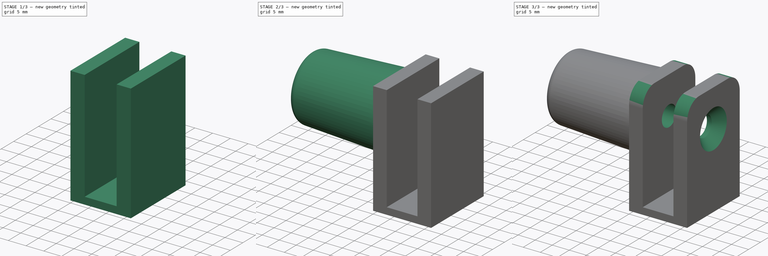
[diagram: build sequence overview — one tinted view per stage of 3, left to right]
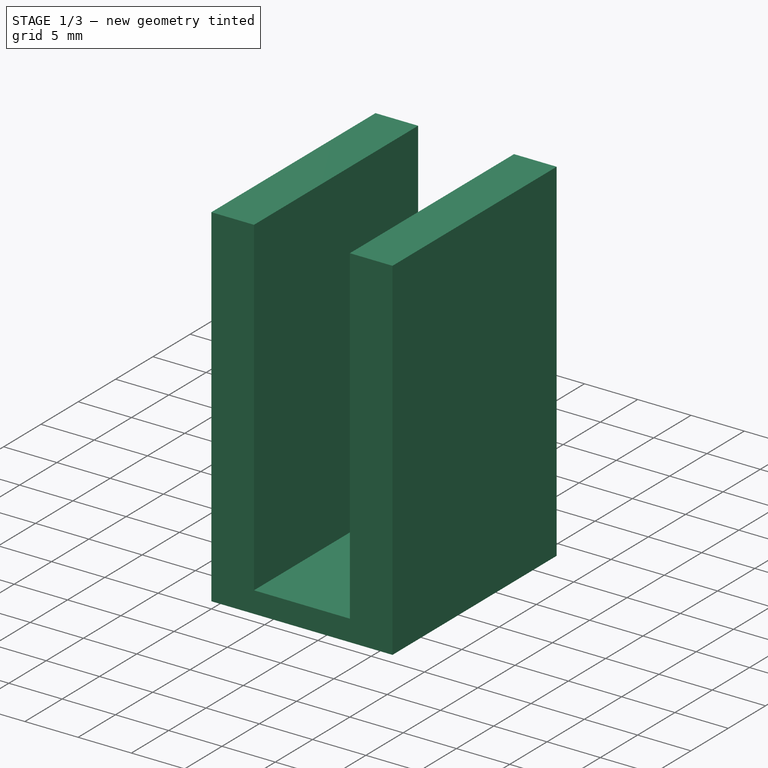
[diagram: stage 1 of 3 — iso view after this stage's code; geometry added in this stage tinted green]
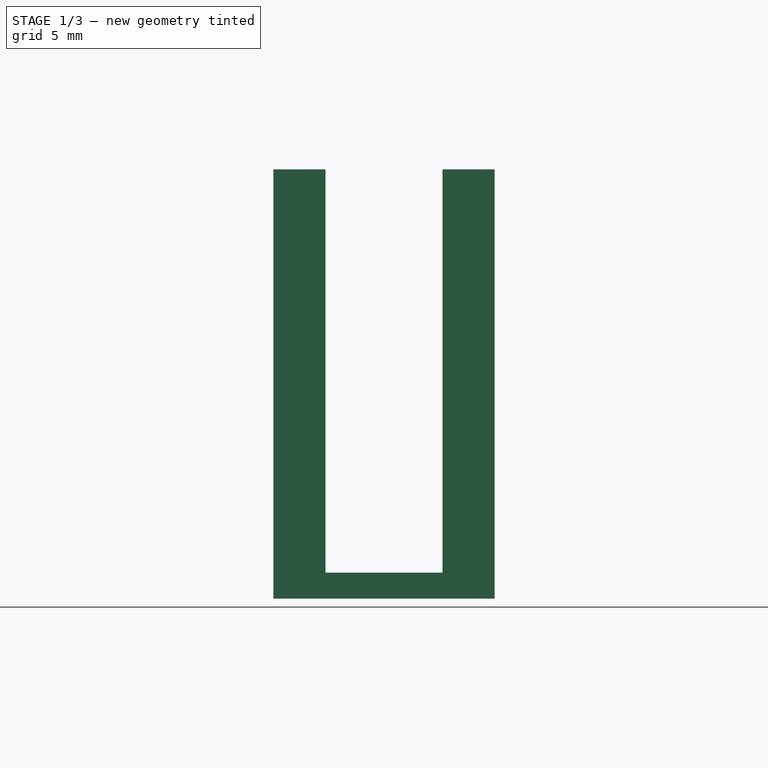
[diagram: stage 1 of 3 — front view after this stage's code; geometry added in this stage tinted green]
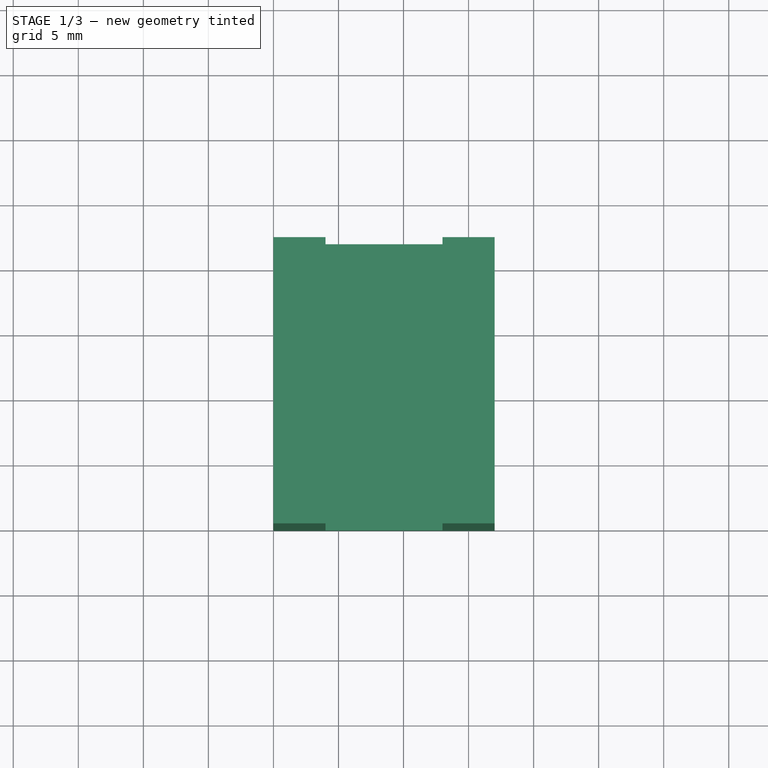
[diagram: stage 1 of 3 — top view after this stage's code; geometry added in this stage tinted green]
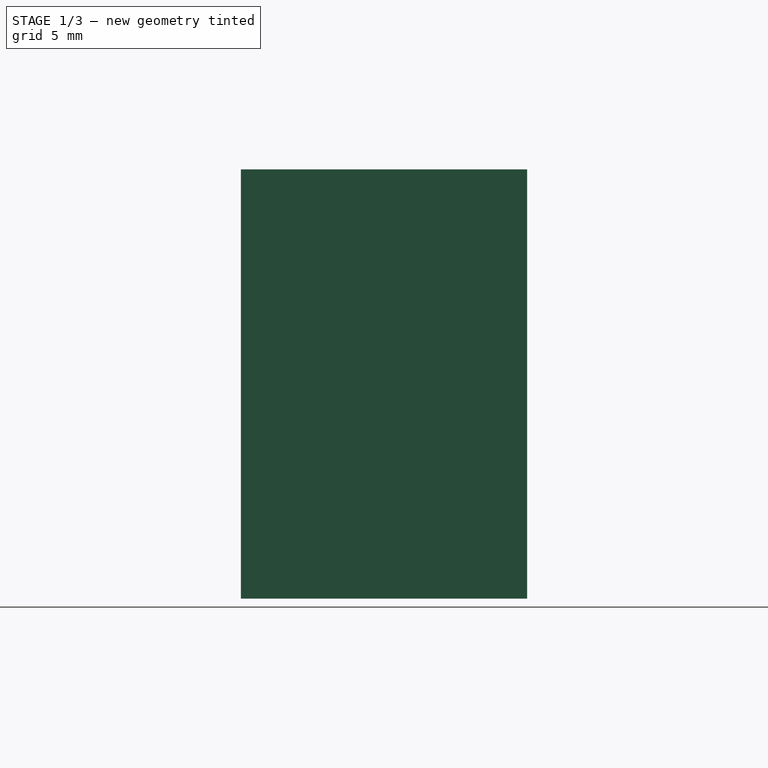
[diagram: stage 1 of 3 — right view after this stage's code; geometry added in this stage tinted green]
FCSTD DOCUMENT  (FreeCAD 0.18R16155 (Git))
Label: shutter_stop_holder
License: All rights reserved
LicenseURL: http://en.wikipedia.org/wiki/All_rights_reserved
objects: Sketcher::SketchObject×5, PartDesign::Pad×2, PartDesign::Fillet×2, PartDesign::AdditiveLoft×1, PartDesign::Hole×1, PartDesign::Body×1, App::Part×1
note: 16 computed .brp shape members not serialized (recipe doc carries the construction recipe); baked Part::Feature solids carry a one-line shape summary decoded from their .brp

FEATURE [Sketcher::SketchObject] Sketch
  MapMode = 5
  Support = -> [XY_Plane001]
  sketch-geometry (4):
    g0: LineSegment StartX=0 StartY=0 StartZ=0 EndX=17 EndY=0 EndZ=0
    g1: LineSegment StartX=17 StartY=0 StartZ=0 EndX=17 EndY=22 EndZ=0
    g2: LineSegment StartX=17 StartY=22 StartZ=0 EndX=0 EndY=22 EndZ=0
    g3: LineSegment StartX=0 StartY=22 StartZ=0 EndX=0 EndY=0 EndZ=0
  constraints (11):
    c: Coincident(g0,g1)
    c: Coincident(g1,g2)
    c: Coincident(g2,g3)
    c: Coincident(g3,g0)
    c: Horizontal(g0)
    c: Horizontal(g2)
    c: Vertical(g1)
    c: Vertical(g3)
    c: Distance(g2) = 17
    c: Distance(g1) = 22
    c: Coincident(g0,g-1)
FEATURE [PartDesign::Pad] Pad
  Length = 2
  Length2 = 100
  Profile = -> Sketch
  Type = 0
FEATURE [Sketcher::SketchObject] Sketch001
  ExternalGeometry = -> [Pad]
  MapMode = 5
  Placement = pos=(0,0,2) rot=(0,0,1;0rad)
  Support = -> [Pad]
  sketch-geometry (8):
    g0: LineSegment StartX=13 StartY=22 StartZ=0 EndX=17 EndY=22 EndZ=0
    g1: LineSegment StartX=13 StartY=1.7e-15 StartZ=0 EndX=17 EndY=0 EndZ=0
    g2: LineSegment StartX=17 StartY=22 StartZ=0 EndX=17 EndY=0 EndZ=0
    g3: LineSegment StartX=13 StartY=22 StartZ=0 EndX=13 EndY=0 EndZ=0
    g4: LineSegment StartX=4 StartY=22 StartZ=0 EndX=4 EndY=0 EndZ=0
    g5: LineSegment StartX=0 StartY=22 StartZ=0 EndX=4 EndY=22 EndZ=0
    g6: LineSegment StartX=0 StartY=0 StartZ=0 EndX=4 EndY=0 EndZ=0
    g7: LineSegment StartX=0 StartY=22 StartZ=0 EndX=0 EndY=0 EndZ=0
  constraints (20):
    c: Coincident(g2,g-3)
    c: Coincident(g2,g-3)
    c: Coincident(g1,g2)
    c: Coincident(g1,g3)
    c: Coincident(g3,g0)
    c: Coincident(g0,g2)
    c: Coincident(g4,g5)
    c: Coincident(g4,g6)
    c: Coincident(g6,g7)
    c: Coincident(g7,g5)
    c: Coincident(g6,g-1)
    c: Coincident(g5,g-4)
    c: Parallel(g4,g7)
    c: Parallel(g3,g2)
    c: Perpendicular(g0,g2)
    c: Perpendicular(g5,g7)
    c: Equal(g7,g4)
    c: Equal(g3,g2)
    c: Distance(g0) = 4
    c: Equal(g0,g5)
FEATURE [PartDesign::Pad] Pad001
  BaseFeature = -> Pad
  Length = 31
  Length2 = 100
  Profile = -> Sketch001
  Type = 0
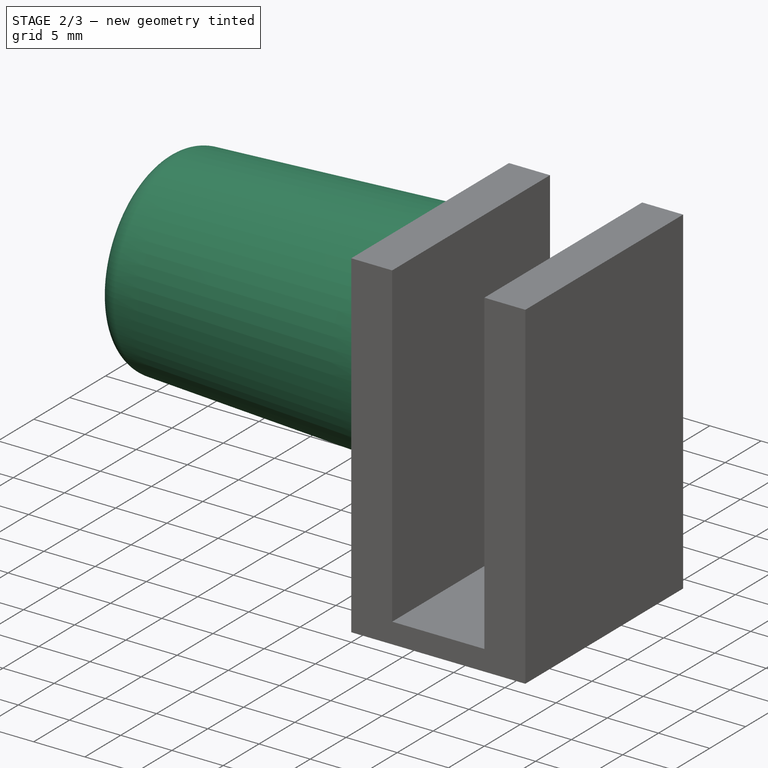
[diagram: stage 2 of 3 — iso view after this stage's code; geometry added in this stage tinted green]
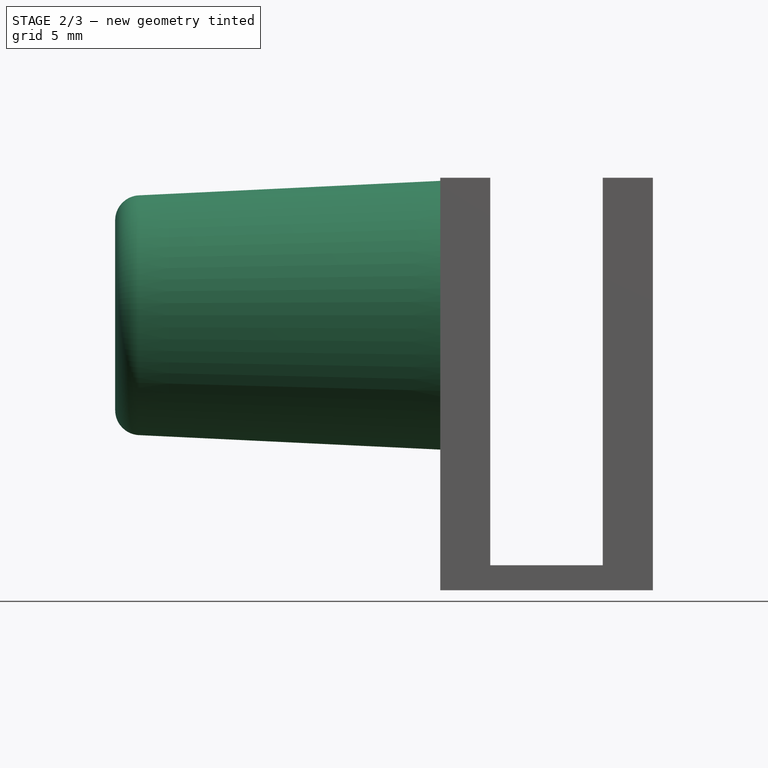
[diagram: stage 2 of 3 — front view after this stage's code; geometry added in this stage tinted green]
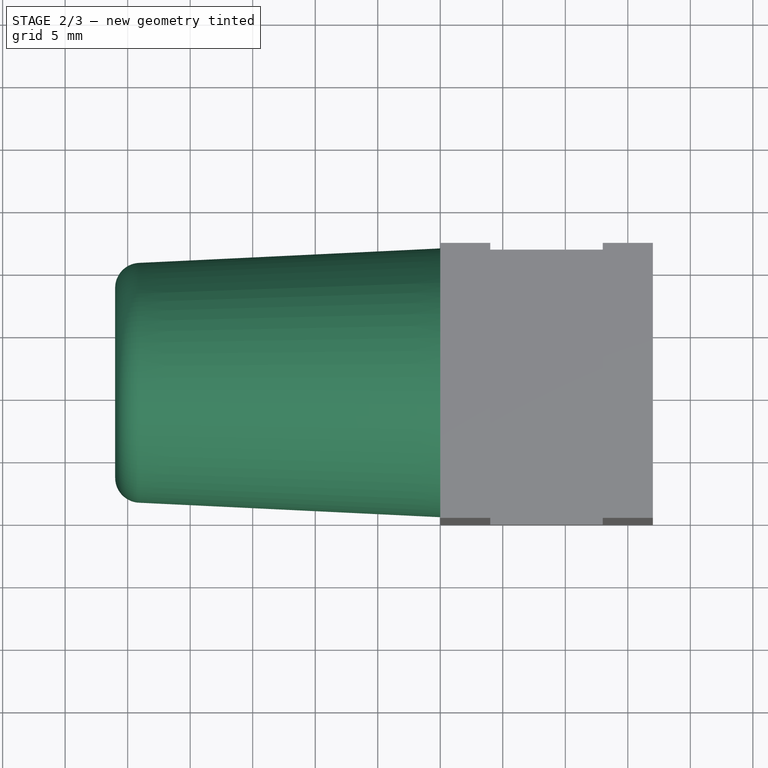
[diagram: stage 2 of 3 — top view after this stage's code; geometry added in this stage tinted green]
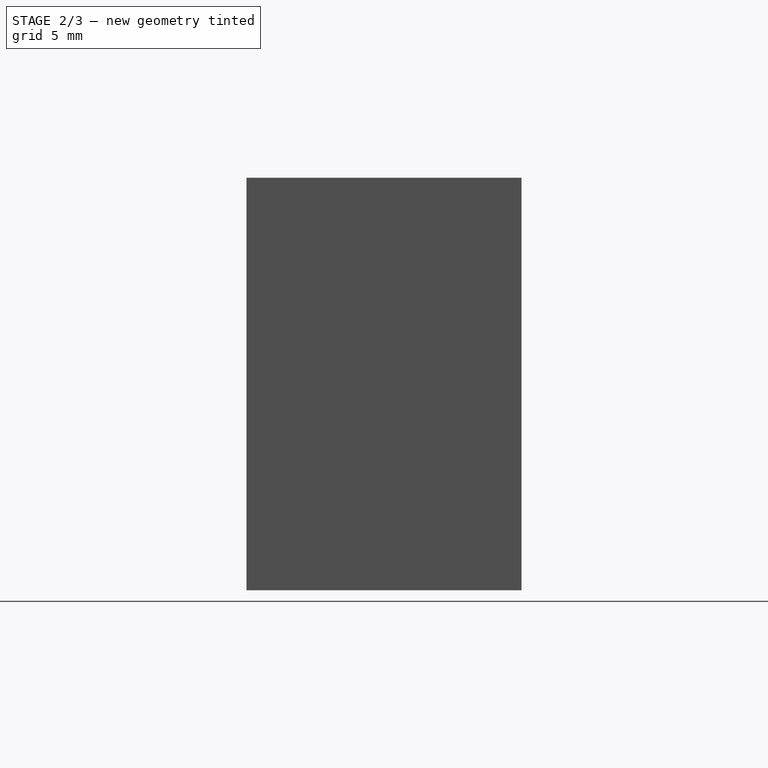
[diagram: stage 2 of 3 — right view after this stage's code; geometry added in this stage tinted green]
FEATURE [Sketcher::SketchObject] Sketch002
  ExternalGeometry = -> [Pad001]
  MapMode = 5
  Placement = pos=(0,0,0) rot=(0.57735,-0.57735,-0.57735;2.0944rad)
  Support = -> [Pad001]
  sketch-geometry (4):
    g0: LineSegment [constr] StartX=-11 StartY=33 StartZ=0 EndX=-11 EndY=22 EndZ=0
    g1: LineSegment [constr] StartX=-22 StartY=33 StartZ=0 EndX=-11 EndY=22 EndZ=0
    g2: LineSegment [constr] StartX=0 StartY=33 StartZ=0 EndX=-11 EndY=22 EndZ=0
    g3: Circle CenterX=-11 CenterY=22 CenterZ=0 NormalX=0 NormalY=0 NormalZ=1 AngleXU=0 Radius=10.75
  constraints (10):
    c: PointOnObject(g0,g-3)
    c: Distance(g0) = 11
    c: Coincident(g2,g-3)
    c: Coincident(g1,g-3)
    c: Coincident(g1,g0)
    c: Coincident(g2,g0)
    c: Equal(g2,g1)
    c: Diameter(g3) = 21.5
    c: Coincident(g3,g0)
    c: Perpendicular(g-3,g0)
FEATURE [Sketcher::SketchObject] Sketch003
  AttachmentOffset = pos=(0,0,26) rot=(0,0,1;0rad)
  ExternalGeometry = -> [Pad001]
  MapMode = 5
  Placement = pos=(-26,0,0) rot=(0.57735,-0.57735,-0.57735;2.0944rad)
  Support = -> [Pad001]
  sketch-geometry (4):
    g0: LineSegment [constr] StartX=-22 StartY=33 StartZ=0 EndX=-11 EndY=22 EndZ=0
    g1: LineSegment [constr] StartX=-11 StartY=33 StartZ=0 EndX=-11 EndY=22 EndZ=0
    g2: LineSegment [constr] StartX=0 StartY=33 StartZ=0 EndX=-11 EndY=22 EndZ=0
    g3: Circle CenterX=-11 CenterY=22 CenterZ=0 NormalX=0 NormalY=0 NormalZ=1 AngleXU=0 Radius=9.5
  constraints (10):
    c: Coincident(g2,g1)
    c: Coincident(g1,g0)
    c: Coincident(g2,g-3)
    c: Coincident(g0,g-3)
    c: PointOnObject(g1,g-3)
    c: Distance(g1) = 11
    c: Equal(g2,g0)
    c: Perpendicular(g-3,g1)
    c: Diameter(g3) = 19
    c: Coincident(g0,g3)
FEATURE [PartDesign::AdditiveLoft] AdditiveLoft
  BaseFeature = -> Pad001
  Closed = false
  Profile = -> Sketch002
  Ruled = false
  Sections = -> [Sketch003]
FEATURE [PartDesign::Fillet] Fillet
  Base = -> AdditiveLoft [Edge37]
  BaseFeature = -> AdditiveLoft
  Radius = 2
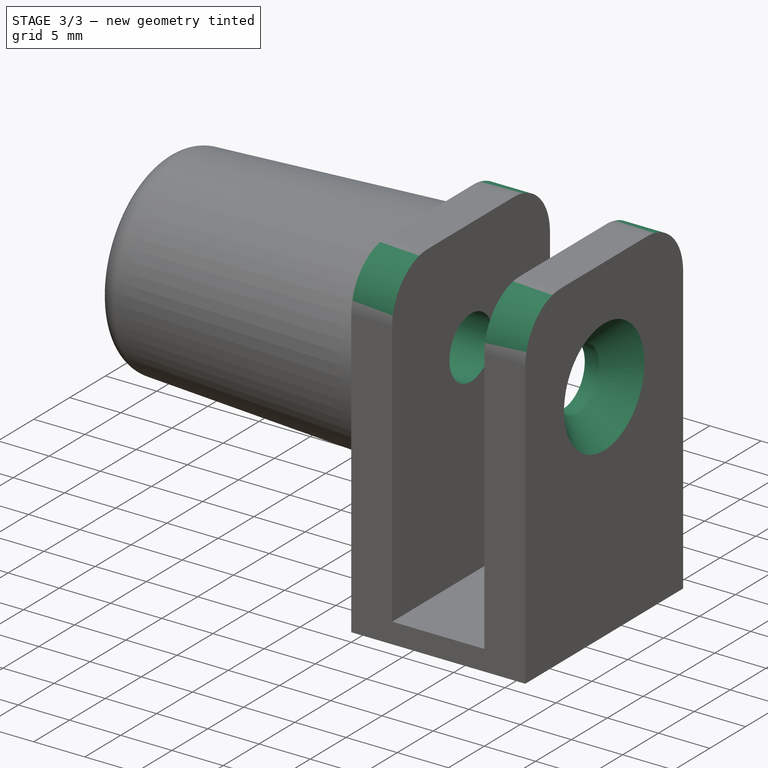
[diagram: stage 3 of 3 — iso view after this stage's code; geometry added in this stage tinted green]
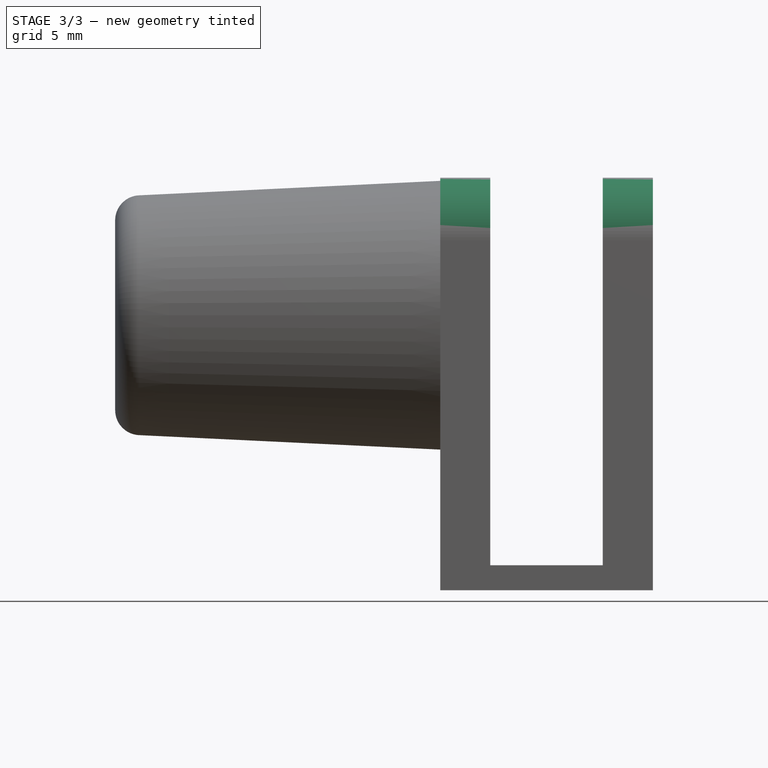
[diagram: stage 3 of 3 — front view after this stage's code; geometry added in this stage tinted green]
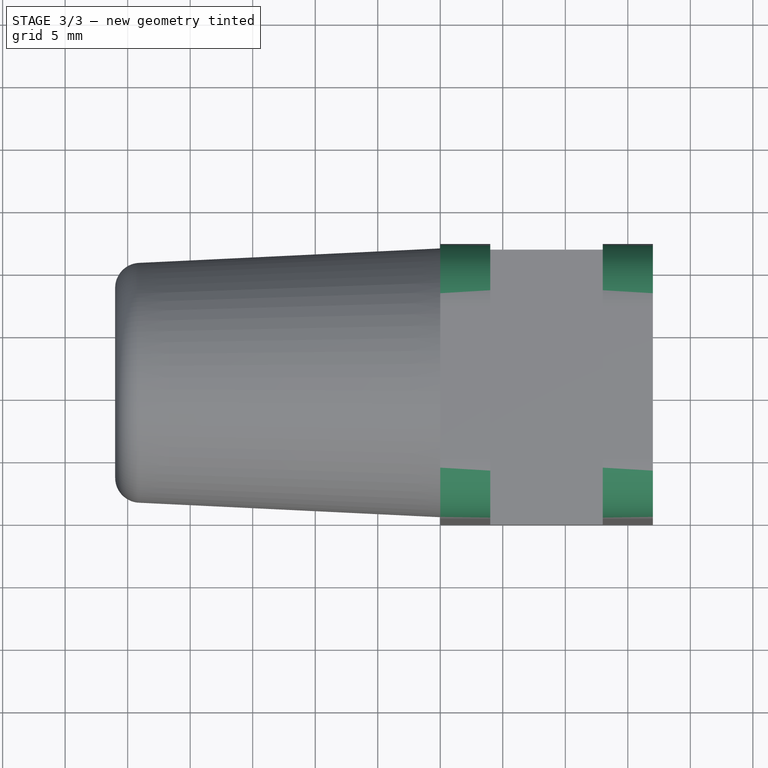
[diagram: stage 3 of 3 — top view after this stage's code; geometry added in this stage tinted green]
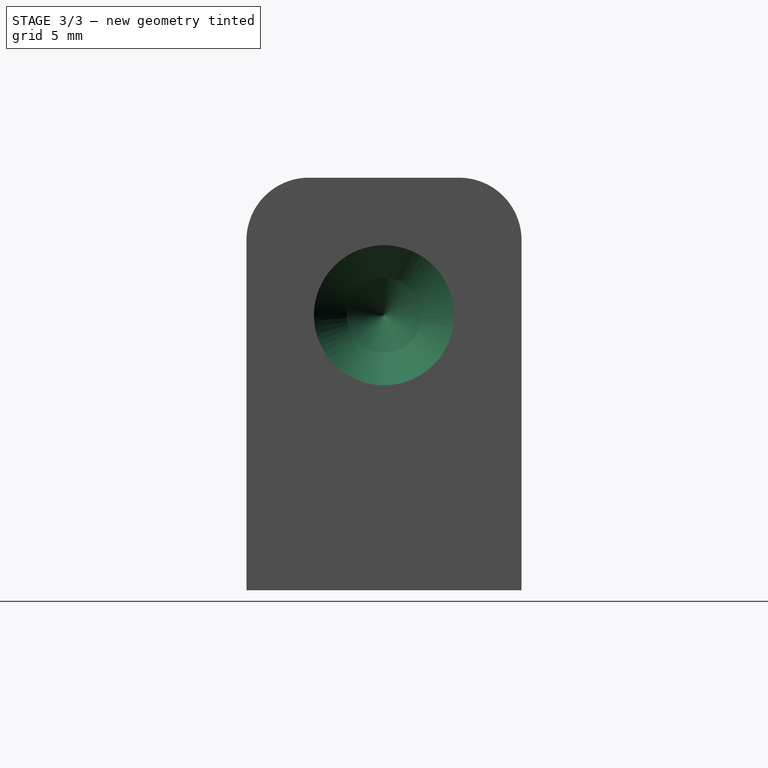
[diagram: stage 3 of 3 — right view after this stage's code; geometry added in this stage tinted green]
FEATURE [Sketcher::SketchObject] Sketch004
  ExternalGeometry = -> [Fillet]
  MapMode = 5
  Placement = pos=(17,0,0) rot=(0.57735,0.57735,0.57735;2.0944rad)
  Support = -> [Fillet]
  sketch-geometry (4):
    g0: LineSegment [constr] StartX=11 StartY=33 StartZ=0 EndX=11 EndY=22 EndZ=0
    g1: LineSegment [constr] StartX=22 StartY=33 StartZ=0 EndX=11 EndY=22 EndZ=0
    g2: LineSegment [constr] StartX=0 StartY=33 StartZ=0 EndX=11 EndY=22 EndZ=0
    g3: Circle CenterX=11 CenterY=22 CenterZ=0 NormalX=0 NormalY=0 NormalZ=1 AngleXU=0 Radius=2.9
  constraints (10):
    c: Coincident(g0,g1)
    c: Coincident(g0,g2)
    c: Equal(g1,g2)
    c: Distance(g0) = 11
    c: Coincident(g1,g-3)
    c: Coincident(g2,g-3)
    c: PointOnObject(g0,g-3)
    c: Perpendicular(g-3,g0)
    c: Coincident(g3,g0)
    c: Diameter(g3) = 5.8
FEATURE [PartDesign::Hole] Hole
  BaseFeature = -> Fillet
  Depth = 28
  DepthType = 0
  Diameter = 6
  DrillPoint = 1
  DrillPointAngle = 118
  HoleCutCountersinkAngle = 90
  HoleCutDepth = 0
  HoleCutDiameter = 11.2
  HoleCutType = 2
  ModelActualThread = false
  Profile = -> Sketch004
  Tapered = false
  TaperedAngle = 90
  ThreadAngle = 0
  ThreadClass = 0
  ThreadCutOffInner = 0
  ThreadCutOffOuter = 0
  ThreadDirection = 0
  ThreadFit = 0
  ThreadPitch = 0
  ThreadSize = 0
  ThreadType = 0
  Threaded = false
FEATURE [PartDesign::Fillet] Fillet001
  Base = -> Hole [Edge40,Edge17,Edge12,Edge37]
  BaseFeature = -> Hole
  Radius = 5
FEATURE [PartDesign::Body] Body
  Group = -> [Sketch,Pad,Sketch001,Pad001,Sketch002,Sketch003,AdditiveLoft,Fillet,Sketch004,Hole,Fillet001]
  Origin = -> Origin001
  Tip = -> Fillet001
FEATURE [App::Part] Part
  Group = -> [Body]
  Origin = -> Origin
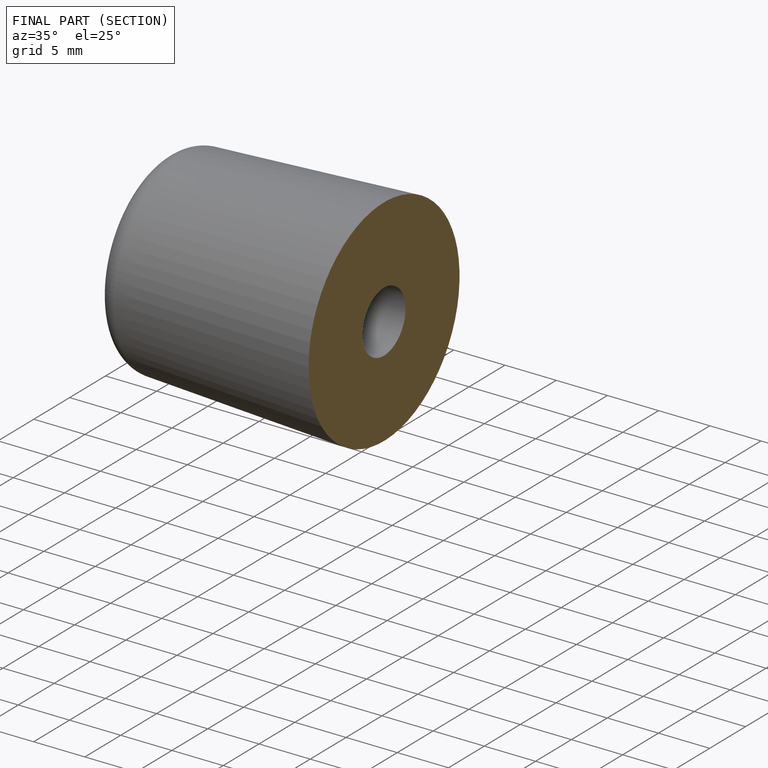
[diagram: finished part — half-section view (interior)]
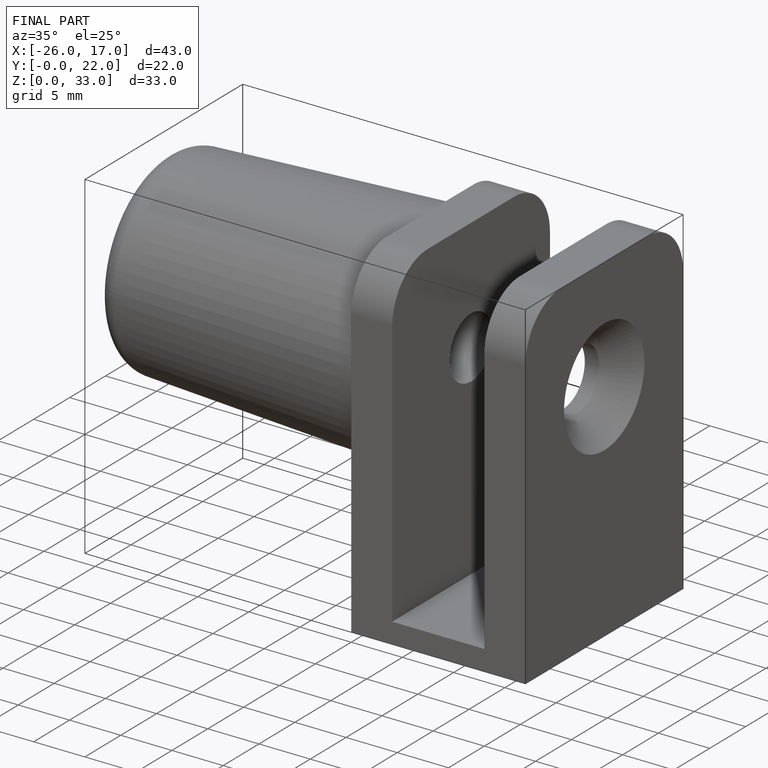
[diagram: finished part — iso view with bounding-box wireframe]
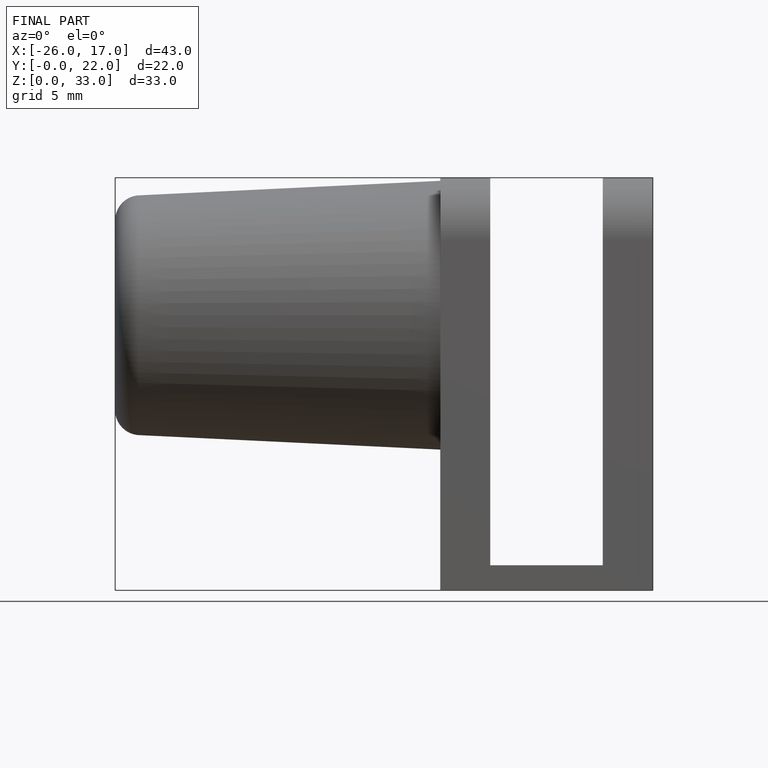
[diagram: finished part — front view with bounding-box wireframe]
